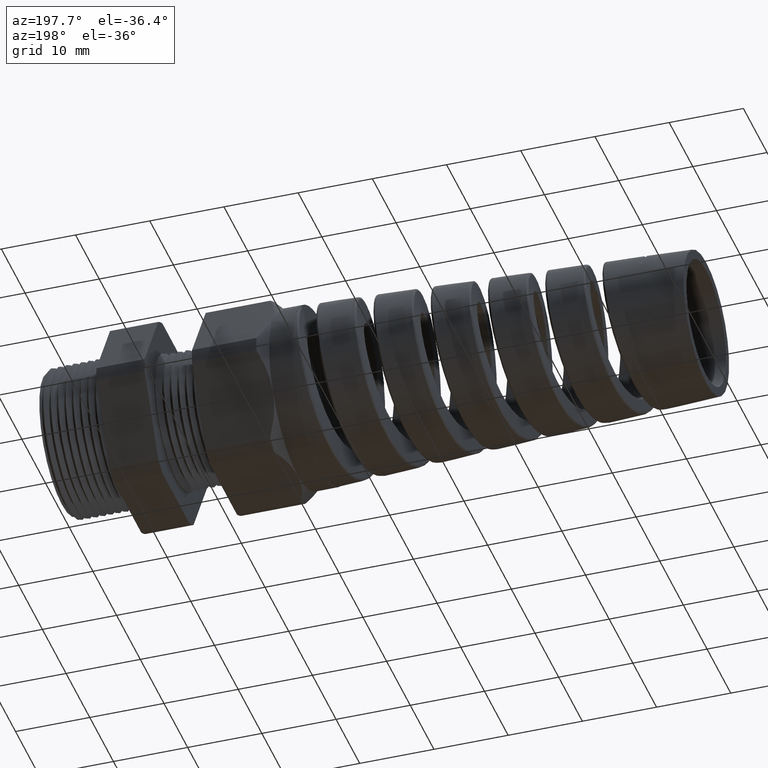
[diagram: clean part render]
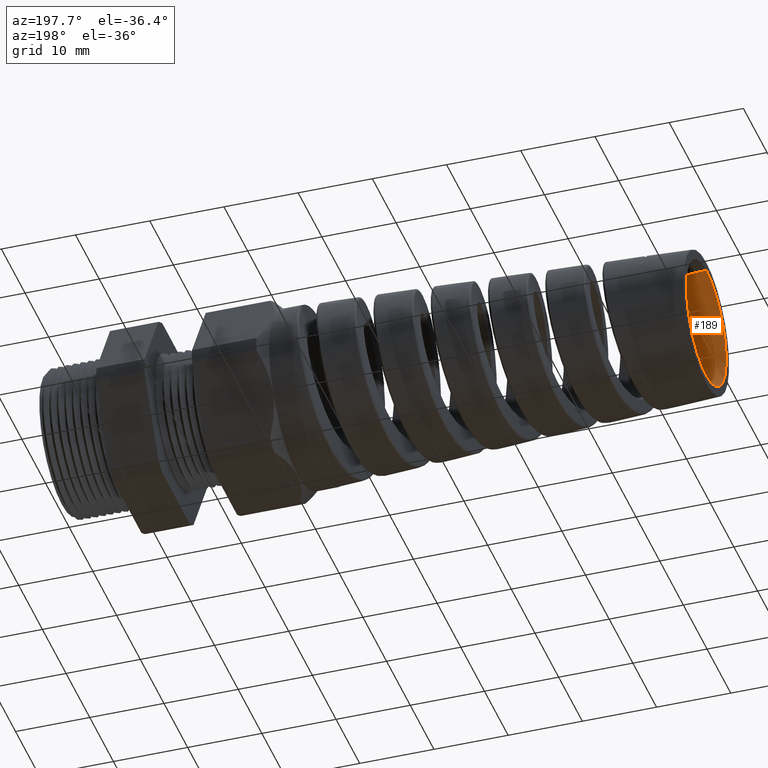
[diagram: same view with one face highlighted and labeled with its STEP entity id]
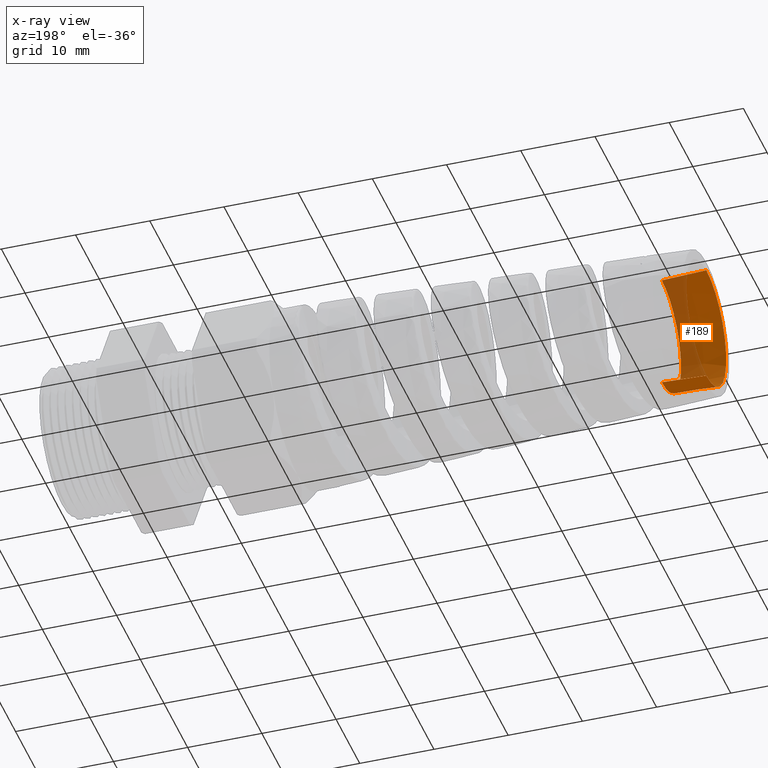
[diagram: x-ray of the same camera — body ghosted, the highlighted face saturated]
A machine part, auxiliary view. The second image highlights one B-rep face of the part: STEP entity #189.
The next image is the same camera in x-ray: the body ghosted, the highlighted face saturated — about 33% of this face is hidden behind the body in this view.
In plain terms, the highlighted conical surface has half-angle 2.5 deg.
Its self-contained STEP definition (entity closure, byte-faithful):
#162 = ORIENTED_EDGE ( 'NONE', *, *, #163, .T. ) ;
#163 = EDGE_CURVE ( 'NONE', #180, #164, #1093, .T. ) ;
#164 = VERTEX_POINT ( 'NONE', #1155 ) ;
#165 = ORIENTED_EDGE ( 'NONE', *, *, #166, .T. ) ;
#166 = EDGE_CURVE ( 'NONE', #164, #167, #1154, .T. ) ;
#167 = VERTEX_POINT ( 'NONE', #1149 ) ;
#168 = ORIENTED_EDGE ( 'NONE', *, *, #169, .F. ) ;
#169 = EDGE_CURVE ( 'NONE', #170, #167, #1148, .T. ) ;
#170 = VERTEX_POINT ( 'NONE', #1144 ) ;
#171 = ORIENTED_EDGE ( 'NONE', *, *, #172, .F. ) ;
#172 = EDGE_CURVE ( 'NONE', #179, #170, #1143, .T. ) ;
#179 = VERTEX_POINT ( 'NONE', #1125 ) ;
#180 = VERTEX_POINT ( 'NONE', #1124 ) ;
#181 = EDGE_CURVE ( 'NONE', #179, #180, #1185, .T. ) ;
#182 = ORIENTED_EDGE ( 'NONE', *, *, #181, .T. ) ;
#189 = ADVANCED_FACE ( 'NONE', ( #1173 ), #1165, .F. ) ;
#192 = EDGE_LOOP ( 'NONE', ( #182, #162, #165, #168, #171 ) ) ;
#1090 = DIRECTION ( 'NONE',  ( -0.9990482215818576900, 5.341834311772734800E-018, -0.04361938736533609700 ) ) ;
#1091 = VECTOR ( 'NONE', #1090, 39.37007874015748100 ) ;
#1092 = CARTESIAN_POINT ( 'NONE',  ( -3.143780000000000000, 3.918869757271533900E-017, -0.3200000000000002800 ) ) ;
#1093 = LINE ( 'NONE', #1092, #1091 ) ;
#1124 = CARTESIAN_POINT ( 'NONE',  ( -3.143780000000000000, 0.0000000000000000000, -0.3199999999999997300 ) ) ;
#1125 = CARTESIAN_POINT ( 'NONE',  ( -3.143780000000000000, -0.2481132334383382200, 0.2020886523107441900 ) ) ;
#1139 = DIRECTION ( 'NONE',  ( 0.0000000000000000000, 0.0000000000000000000, 1.000000000000000000 ) ) ;
#1140 = DIRECTION ( 'NONE',  ( -1.000000000000000000, 0.0000000000000000000, 0.0000000000000000000 ) ) ;
#1141 = CARTESIAN_POINT ( 'NONE',  ( -3.143780000000000000, 0.0000000000000000000, 0.0000000000000000000 ) ) ;
#1142 = AXIS2_PLACEMENT_3D ( 'NONE', #1141, #1140, #1139 ) ;
#1143 = CIRCLE ( 'NONE', #1142, 0.3200000000000002800 ) ;
#1144 = CARTESIAN_POINT ( 'NONE',  ( -3.143780000000000000, 0.0000000000000000000, 0.3200000000000002800 ) ) ;
#1145 = DIRECTION ( 'NONE',  ( -0.9990482215818576900, 0.0000000000000000000, 0.04361938736533609700 ) ) ;
#1146 = VECTOR ( 'NONE', #1145, 39.37007874015748100 ) ;
#1147 = CARTESIAN_POINT ( 'NONE',  ( -3.143780000000000000, 0.0000000000000000000, 0.3200000000000002800 ) ) ;
#1148 = LINE ( 'NONE', #1147, #1146 ) ;
#1149 = CARTESIAN_POINT ( 'NONE',  ( -3.380000472440945400, 0.0000000000000000000, 0.3303136085610661700 ) ) ;
#1150 = DIRECTION ( 'NONE',  ( 0.0000000000000000000, 0.0000000000000000000, 1.000000000000000000 ) ) ;
#1151 = DIRECTION ( 'NONE',  ( -1.000000000000000000, 0.0000000000000000000, 0.0000000000000000000 ) ) ;
#1152 = CARTESIAN_POINT ( 'NONE',  ( -3.380000472440945400, 0.0000000000000000000, 0.0000000000000000000 ) ) ;
#1153 = AXIS2_PLACEMENT_3D ( 'NONE', #1152, #1151, #1150 ) ;
#1154 = CIRCLE ( 'NONE', #1153, 0.3303136085610661200 ) ;
#1155 = CARTESIAN_POINT ( 'NONE',  ( -3.380000472440945400, 4.045175034391214700E-017, -0.3303136085610661700 ) ) ;
#1162 = DIRECTION ( 'NONE',  ( 0.0000000000000000000, 0.0000000000000000000, 1.000000000000000000 ) ) ;
#1163 = DIRECTION ( 'NONE',  ( -1.000000000000000000, 0.0000000000000000000, 0.0000000000000000000 ) ) ;
#1164 = AXIS2_PLACEMENT_3D ( 'NONE', #1167, #1163, #1162 ) ;
#1165 = CONICAL_SURFACE ( 'NONE', #1164, 0.3200000000000002800, 0.04363323129985833400 ) ;
#1167 = CARTESIAN_POINT ( 'NONE',  ( -3.143780000000000000, 0.0000000000000000000, 0.0000000000000000000 ) ) ;
#1173 = FACE_OUTER_BOUND ( 'NONE', #192, .T. ) ;
#1181 = DIRECTION ( 'NONE',  ( 0.0000000000000000000, 0.0000000000000000000, -1.000000000000000000 ) ) ;
#1182 = DIRECTION ( 'NONE',  ( 1.000000000000000000, 0.0000000000000000000, 0.0000000000000000000 ) ) ;
#1183 = CARTESIAN_POINT ( 'NONE',  ( -3.143780000000000000, 0.0000000000000000000, 0.0000000000000000000 ) ) ;
#1184 = AXIS2_PLACEMENT_3D ( 'NONE', #1183, #1182, #1181 ) ;
#1185 = CIRCLE ( 'NONE', #1184, 0.3199999999999997300 ) ;